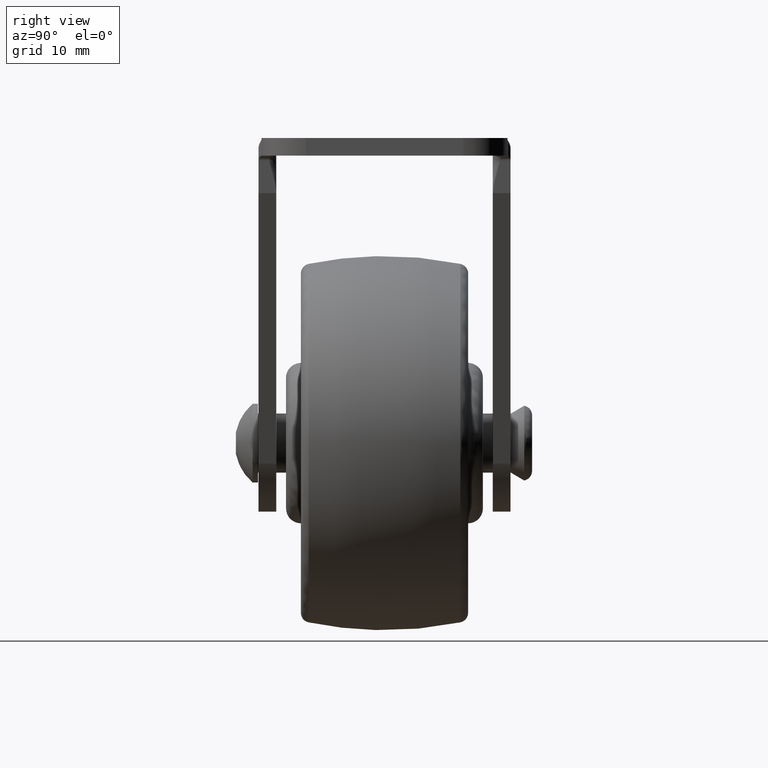
[diagram: clean part render]
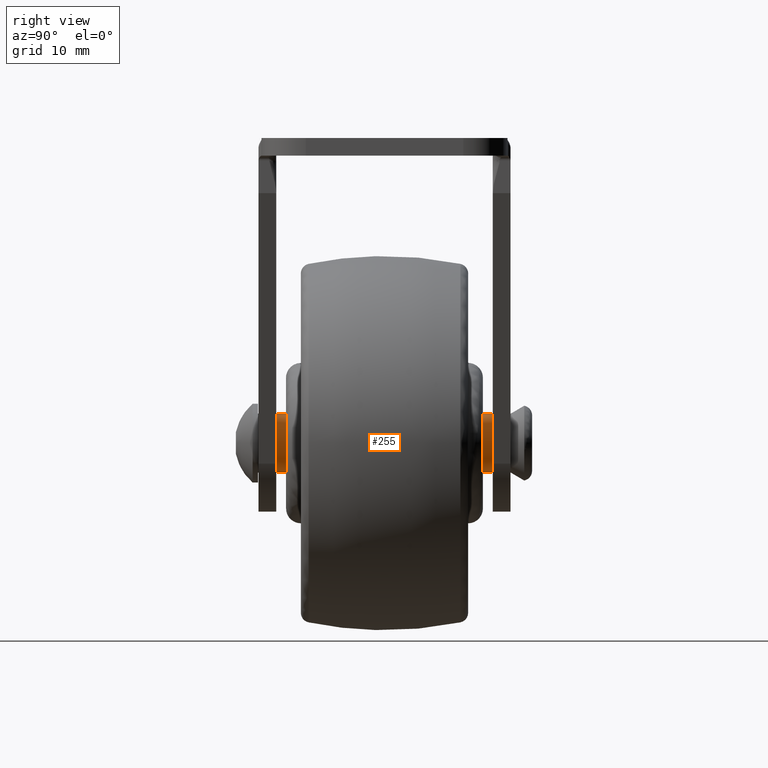
[diagram: same view with one face highlighted and labeled with its STEP entity id]
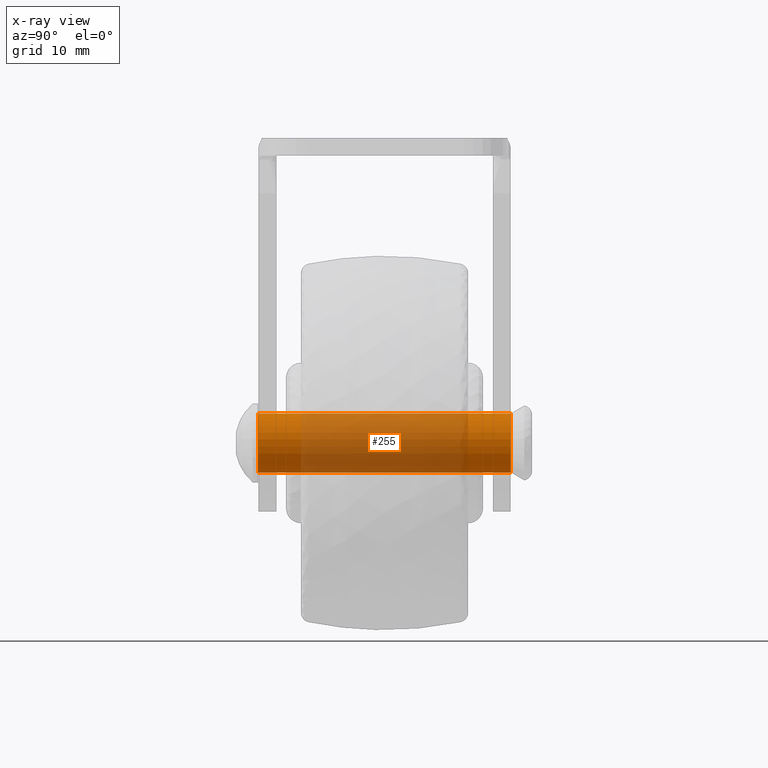
[diagram: x-ray of the same camera — body ghosted, the highlighted face saturated]
A machine part, right view. The second image highlights one B-rep face of the part: STEP entity #255.
The next image is the same camera in x-ray: the body ghosted, the highlighted face saturated — about 66% of this face is hidden behind the body in this view.
In plain terms, the highlighted cylindrical surface (edge-blend (fillet) strip) has radius 3 mm, axis along (0, 1, 0).
Its self-contained STEP definition (entity closure, byte-faithful):
#255=ADVANCED_FACE('',(#1344),#1343,.T.);
#1343=CYLINDRICAL_SURFACE('',#2821,3.00000000000E+00);
#1344=FACE_OUTER_BOUND('',#2822,.T.);
#2818=CARTESIAN_POINT('',(0.00000000000E+00,9.86600002000E+02,0.00000000000E+00));
#2819=DIRECTION('',(-0.00000000000E+00,1.00000000000E+00,-0.00000000000E+00));
#2820=DIRECTION('',(1.22464679915E-16,0.00000000000E+00,-1.00000000000E+00));
#2821=AXIS2_PLACEMENT_3D('',#2818,#2819,#2820);
#2822=EDGE_LOOP('',(#3403,#3404,#3405,#3406));
#3403=ORIENTED_EDGE('',*,*,#3671,.T.);
#3404=ORIENTED_EDGE('',*,*,#3682,.T.);
#3405=ORIENTED_EDGE('',*,*,#3684,.T.);
#3406=ORIENTED_EDGE('',*,*,#3683,.F.);
#3671=EDGE_CURVE('',#5283,#5284,#5285,.T.);
#3682=EDGE_CURVE('',#5284,#5352,#5359,.T.);
#3683=EDGE_CURVE('',#5283,#5351,#5365,.T.);
#3684=EDGE_CURVE('',#5352,#5351,#5371,.T.);
#5283=VERTEX_POINT('',#6718);
#5284=VERTEX_POINT('',#6719);
#5285=CIRCLE('',#6723,3.00000000000E+00);
#5351=VERTEX_POINT('',#6762);
#5352=VERTEX_POINT('',#6763);
#5359=(BOUNDED_CURVE() B_SPLINE_CURVE(1,(#6768,#6769),.UNSPECIFIED.,.F.,.F.) B_SPLINE_CURVE_WITH_KNOTS((2,2),(8.33333328360E-02,9.16666665505E-01),.UNSPECIFIED.) CURVE() GEOMETRIC_REPRESENTATION_ITEM() RATIONAL_B_SPLINE_CURVE((1.00000000000E+00,1.00000000000E+00)) REPRESENTATION_ITEM('') );
#5365=(BOUNDED_CURVE() B_SPLINE_CURVE(1,(#6770,#6771),.UNSPECIFIED.,.F.,.F.) B_SPLINE_CURVE_WITH_KNOTS((2,2),(8.33333333333E-02,9.16666666667E-01),.UNSPECIFIED.) CURVE() GEOMETRIC_REPRESENTATION_ITEM() RATIONAL_B_SPLINE_CURVE((7.50000000000E-01,7.50000000000E-01)) REPRESENTATION_ITEM('') );
#5371=CIRCLE('',#6775,3.00000000000E+00);
#6718=CARTESIAN_POINT('',(5.92118946467E-16,-1.28499880000E+01,3.00000000000E+00));
#6719=CARTESIAN_POINT('',(0.00000000000E+00,-1.28499880000E+01,-3.00000000000E+00));
#6720=CARTESIAN_POINT('',(0.00000000000E+00,-1.28499880000E+01,0.00000000000E+00));
#6721=DIRECTION('',(0.00000000000E+00,1.00000000000E+00,0.00000000000E+00));
#6722=DIRECTION('',(-1.22460635382E-16,0.00000000000E+00,-1.00000000000E+00));
#6723=AXIS2_PLACEMENT_3D('',#6720,#6721,#6722);
#6762=CARTESIAN_POINT('',(0.00000000000E+00,1.28388089992E+01,3.00000000000E+00));
#6763=CARTESIAN_POINT('',(5.92118946467E-16,1.28388089992E+01,-3.00000000000E+00));
#6768=CARTESIAN_POINT('',(3.67394039744E-16,-1.28499880153E+01,-3.00000000000E+00));
#6769=CARTESIAN_POINT('',(3.67394039744E-16,1.28388089634E+01,-3.00000000000E+00));
#6770=CARTESIAN_POINT('',(0.00000000000E+00,-1.28499880000E+01,3.00000000000E+00));
#6771=CARTESIAN_POINT('',(0.00000000000E+00,1.28388089992E+01,3.00000000000E+00));
#6772=CARTESIAN_POINT('',(0.00000000000E+00,1.28388089992E+01,9.88461408184E-16));
#6773=DIRECTION('',(-0.00000000000E+00,-1.00000000000E+00,0.00000000000E+00));
#6774=DIRECTION('',(-1.22460635382E-16,0.00000000000E+00,1.00000000000E+00));
#6775=AXIS2_PLACEMENT_3D('',#6772,#6773,#6774);